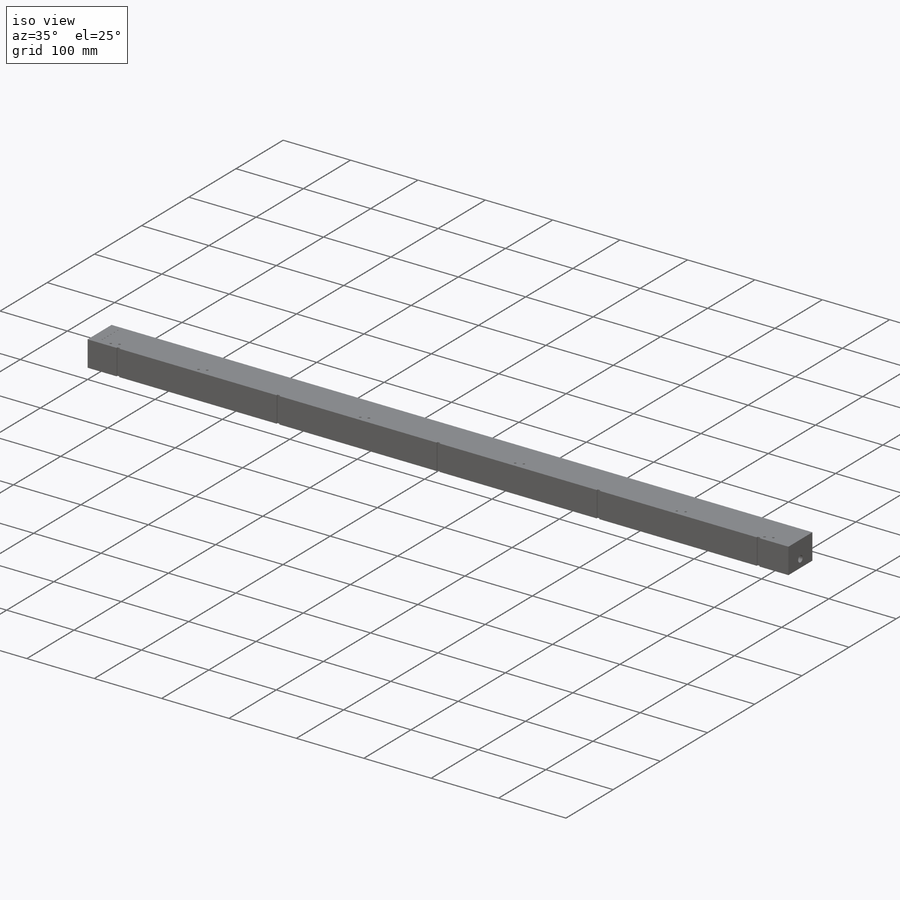
[diagram: iso view]
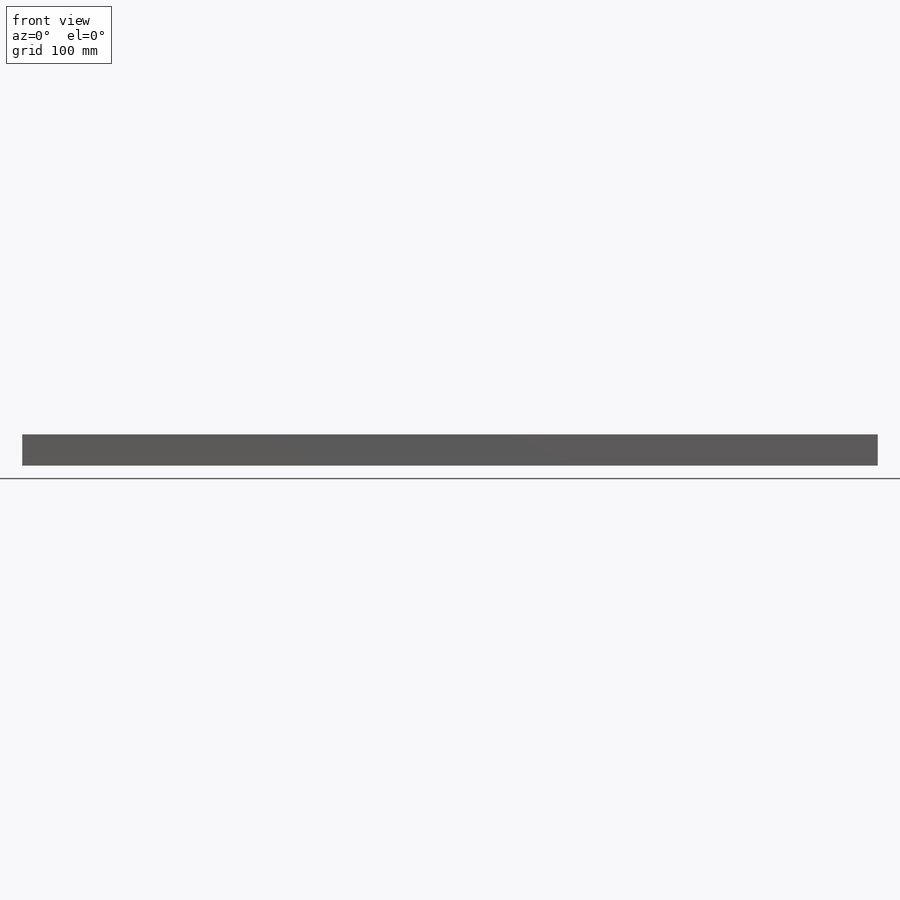
[diagram: front view]
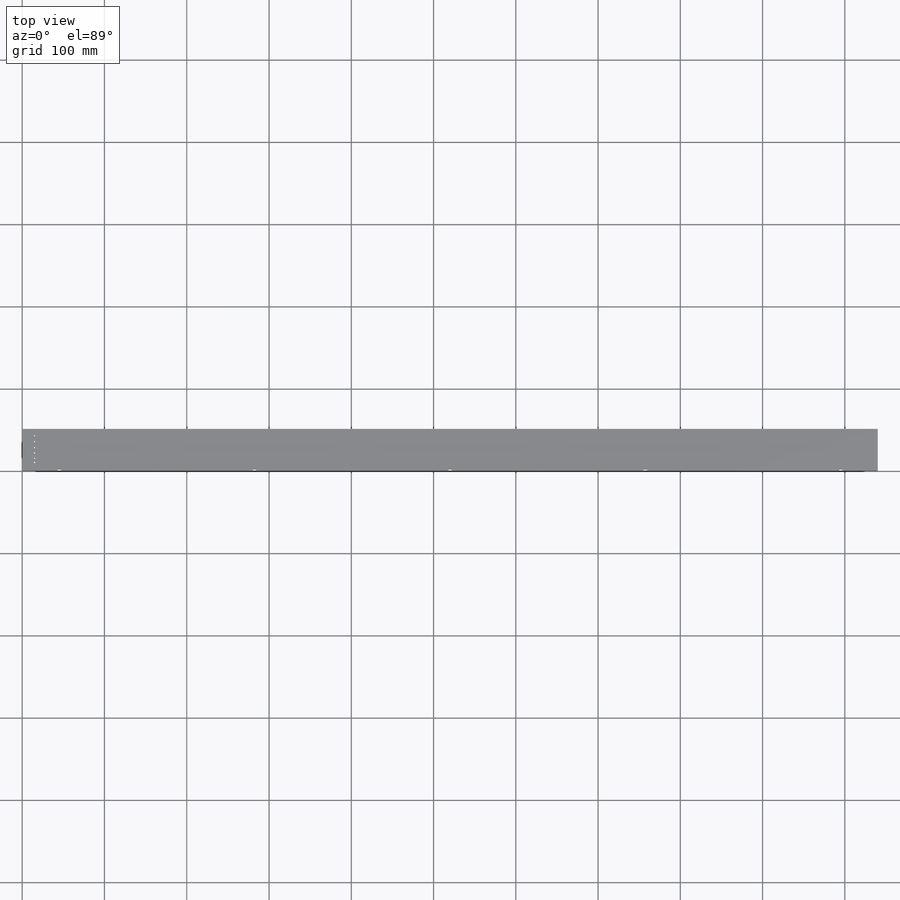
[diagram: top view]
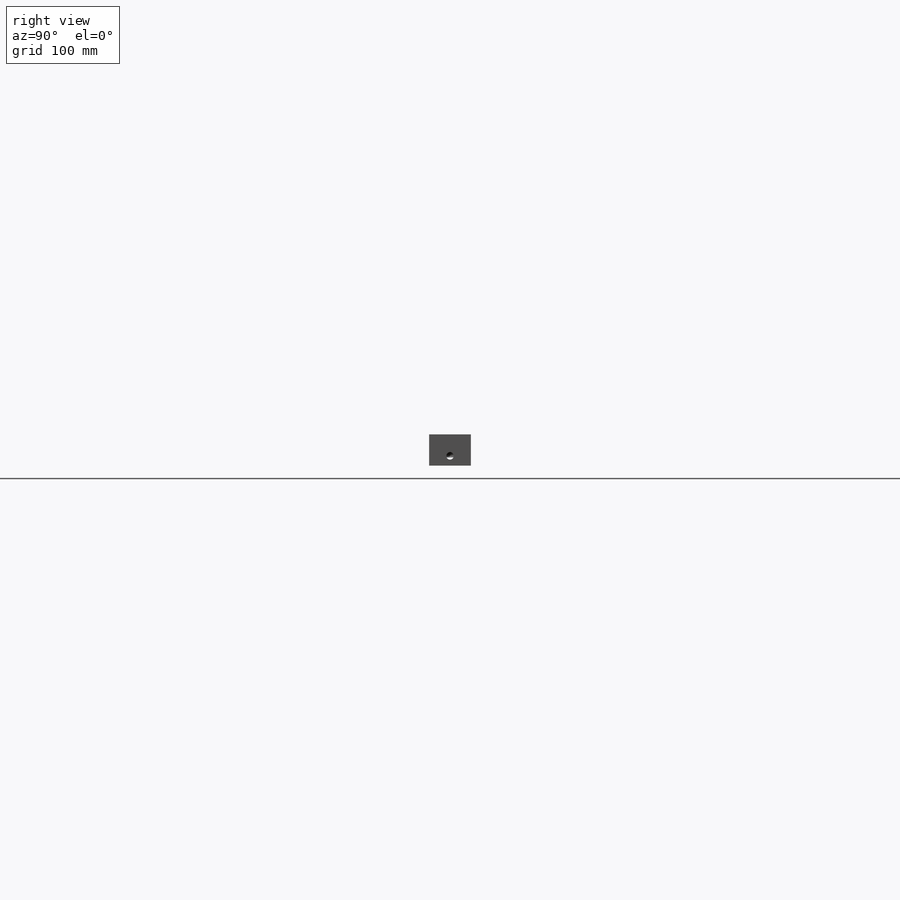
[diagram: right view]
SOLIDWORKS PART (.sldprt)
format: sldprt  version: not decoded by parser v0  size: 615,424 bytes
history: native  units: mm
features: sketch x12, cut_extrude x4, hole x3, thread x2, material x1, extrude x1 (+16 scaffold rows collapsed)
feature tree (39):
  scaffold x16  (default folders/planes/origin — collapsed)
  material  "Material <not specified>"
  sketch  "Sketch1"  dims[D1=1040.0mm]
  extrude  "Boss-Extrude1"  Depth=38.1mm
  sketch  "Sketch2"  dims[D1=2.0mm]
  sketch  "Sketch7"  dims[D1=8.513mm]
  cut_extrude  "Cut-Extrude14"  Depth=5mm
  sketch  "Sketch8"  dims[c1.D1=6.0mm c1.D2=6.0mm c1.D3=6.0mm c1.D4=6.0mm c1.D5=6.0mm c1.D6=6.0mm c1.D7=6.0mm c1.D8=6.0mm c2.D1=6.0mm]
  cut_extrude  "Cut-Extrude15"  Depth=10mm
  cut_extrude  "Cut-Extrude16"  [1 undecoded]
  sketch  "Sketch8<3>"  dims[D1=4.7625mm]
  cut_extrude  "Cut-Extrude18"  [1 undecoded]
  hole  "1/8 NPT Tapped Hole2"  Diameter=8.4328mm Depth=25mm
  sketch  "Sketch13"
  sketch  "Sketch12"  dims[hole-wizard template sketch: 51 standard entries collapsed; hole parameters kept: c13.Tap Drill Depth=25.0mm c13.Thread Dia.=~9.489186mm c13.D4=~22.362017mm c13.Thread Angle=3.43deg c13.Thread Depth=6.92mm c13.D6=~25.48394mm c13.Drill Angle=118.0deg]
  thread  "Hole Thread2"  Diameter=6.92mm  [1 undecoded]
  hole  "1/8 NPT Tapped Hole3"  Diameter=8.4328mm Depth=25mm
  sketch  "Sketch15"
  sketch  "Sketch14"  dims[hole-wizard template sketch: 51 standard entries collapsed; hole parameters kept: c13.Tap Drill Depth=25.0mm c13.Thread Dia.=~9.489186mm c13.D4=~22.362017mm c13.Thread Angle=3.43deg c13.Thread Depth=6.92mm c13.D6=~25.48394mm c13.Drill Angle=118.0deg]
  thread  "Hole Thread3"  Diameter=6.92mm  [1 undecoded]
  sketch  "Sketch17"  dims[c1.D1=7.294mm c1.D2=5.0mm c2.D1=102.0]
  hole  "Hole2"  Diameter=1.5875mm Depth=28.1mm
  sketch  "Sketch27"
  sketch  "Sketch26"  dims[Diameter=1.5875mm Depth=28.1mm C-Drill Diameter=4.7625mm C-Drill Depth=20.0mm C-Drill Angle=118.0deg]
decode coverage: 17 of 22 modeling features carry decoded parameters
note: ~ marks probable driven/reference dimensions
note: 4 parameter values undecoded
note: suppression state not decoded; provenance and decode notes live in map.json
